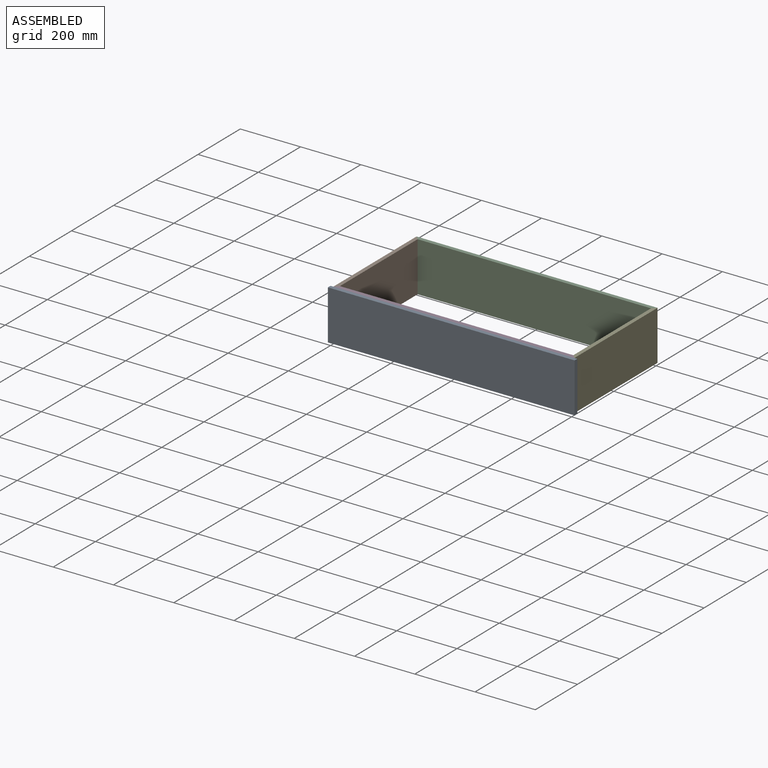
[diagram: assembled view]
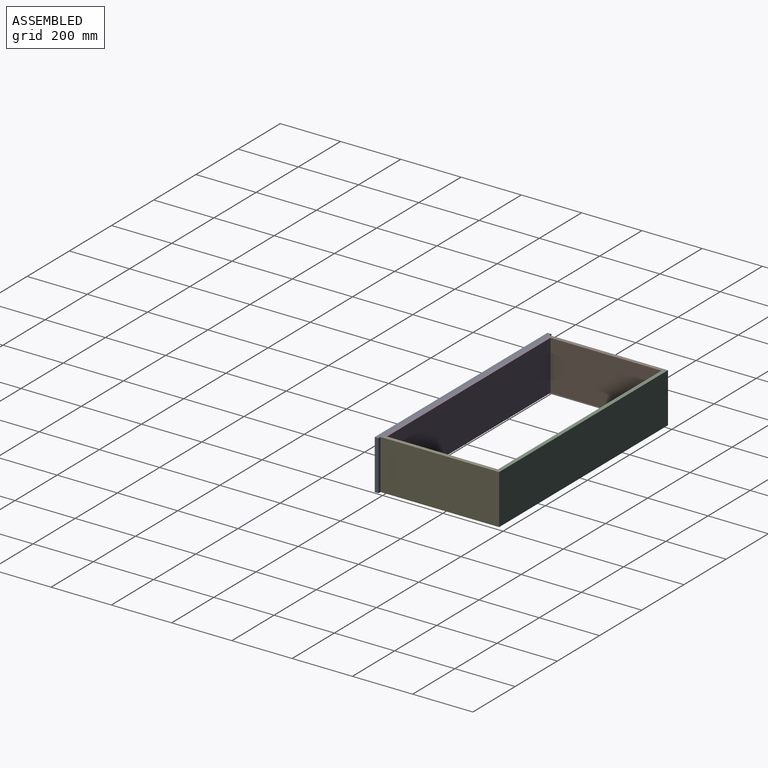
[diagram: assembled view, second angle]
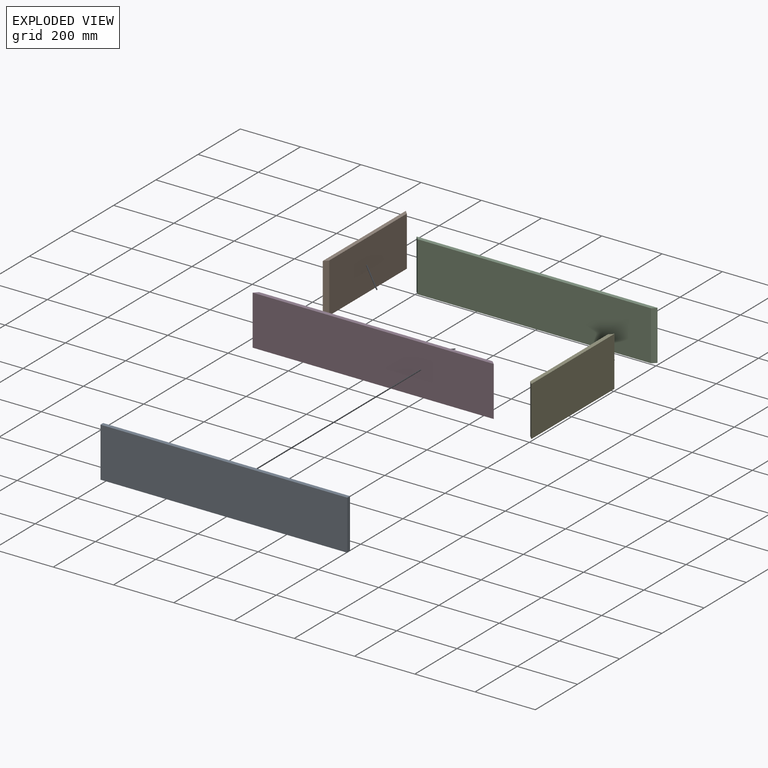
[diagram: exploded view]
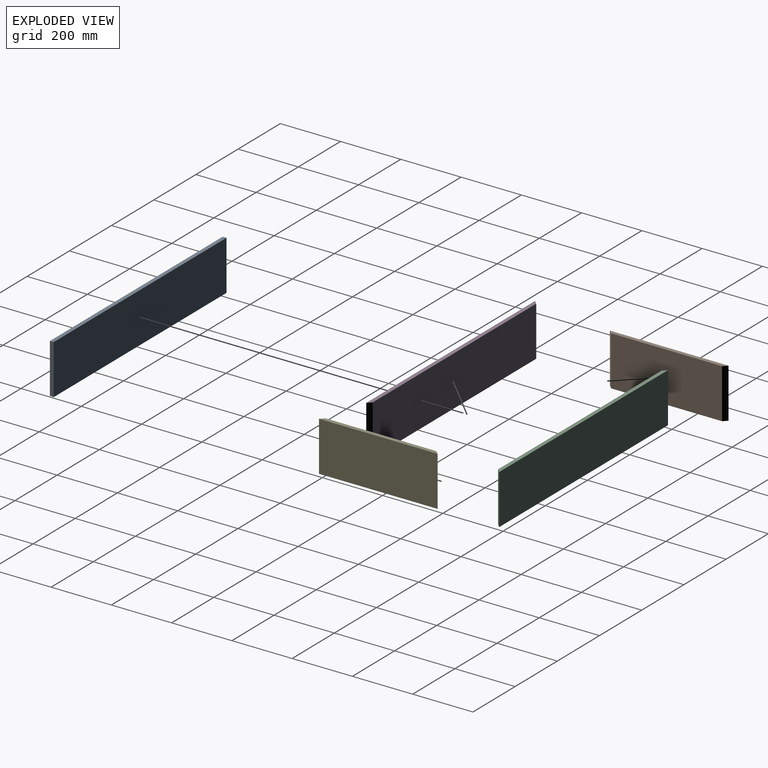
[diagram: exploded view, second angle]
ASSEMBLY  parts=5 mates=4
PART A: 6 faces, bbox 819.2x12.7x165.1 mm
  f0: plane 165.1x12.7mm, normal (-1,0,0), area 2096.8mm2, adj f1,f3,f4,f5
  f1: plane 819.15x12.7mm, normal (0,0,-1), area 10403.2mm2, adj f0,f2,f4,f5
  f2: plane 165.1x12.7mm, normal (1,0,0), area 2096.8mm2, adj f1,f3,f4,f5
  f3: plane 819.15x12.7mm, normal (0,0,1), area 10403.2mm2, adj f0,f2,f4,f5
  f4: plane 819.15x165.1mm, normal (0,-1,0), area 135241.7mm2, adj f0,f1,f2,f3
  f5: plane 819.15x165.1mm, normal (0,1,0), area 135241.7mm2, adj f0,f1,f2,f3
PART B: 6 faces, bbox 12.7x393.7x165.1 mm
  f0: plane 393.7x12.7mm, normal (0,0,-1), area 4838.7mm2, adj f2,f3,f4,f5
  f1: plane 393.7x12.7mm, normal (0,0,1), area 4838.7mm2, adj f2,f3,f4,f5
  f2: plane 393.7x165.1mm, normal (1,0,0), area 64999.9mm2, adj f0,f1,f4,f5
  f3: plane 368.3x165.1mm, normal (-1,0,0), area 60806.3mm2, adj f0,f1,f4,f5
  f4: plane 165.1x12.7mm, normal (-0.71,-0.71,0), area 2965.3mm2, adj f0,f1,f2,f3
  f5: plane 165.1x12.7mm, normal (-0.71,0.71,0), area 2965.3mm2, adj f0,f1,f2,f3
PART C: 6 faces, bbox 800.1x12.7x165.1 mm
  f0: plane 800.1x12.7mm, normal (0,0,-1), area 10000mm2, adj f2,f3,f4,f5
  f1: plane 800.1x12.7mm, normal (0,0,1), area 10000mm2, adj f2,f3,f4,f5
  f2: plane 800.1x165.1mm, normal (0,-1,0), area 132096.5mm2, adj f0,f1,f4,f5
  f3: plane 774.7x165.1mm, normal (0,1,0), area 127903mm2, adj f0,f1,f4,f5
  f4: plane 165.1x12.7mm, normal (0.71,0.71,0), area 2965.3mm2, adj f0,f1,f2,f3
  f5: plane 165.1x12.7mm, normal (-0.71,0.71,0), area 2965.3mm2, adj f0,f1,f2,f3
PART D: same geometry as C
PART E: same geometry as B
PLACE A at identity fixed
PLACE B rot(axis=(0,0,-1),180deg) t=(22.22,393.7,0)mm
PLACE C rot(axis=(0,0,1),180deg) t=(809.62,381,0)mm
PLACE D t=(9.52,12.7,0)mm
PLACE E t=(796.92,0,0)mm
MATE fastened C.f4 <-> B.f4  axis (-0.71,-0.71,0) through (15.87,387.35,82.55)mm
MATE fastened D.f2 <-> A.f5  axis (0,-1,0) through (409.58,0,82.55)mm
MATE fastened D.f5 <-> B.f5  axis (-0.71,0.71,0) through (15.87,6.35,82.55)mm
MATE fastened E.f4 <-> D.f4  axis (-0.71,-0.71,0) through (803.27,6.35,82.55)mm
